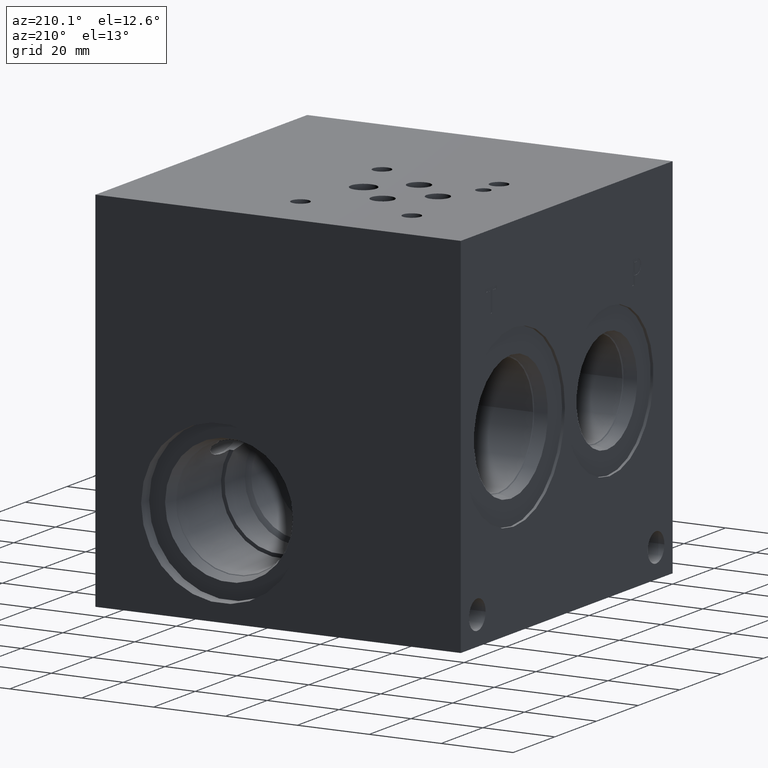
[diagram: clean part render]
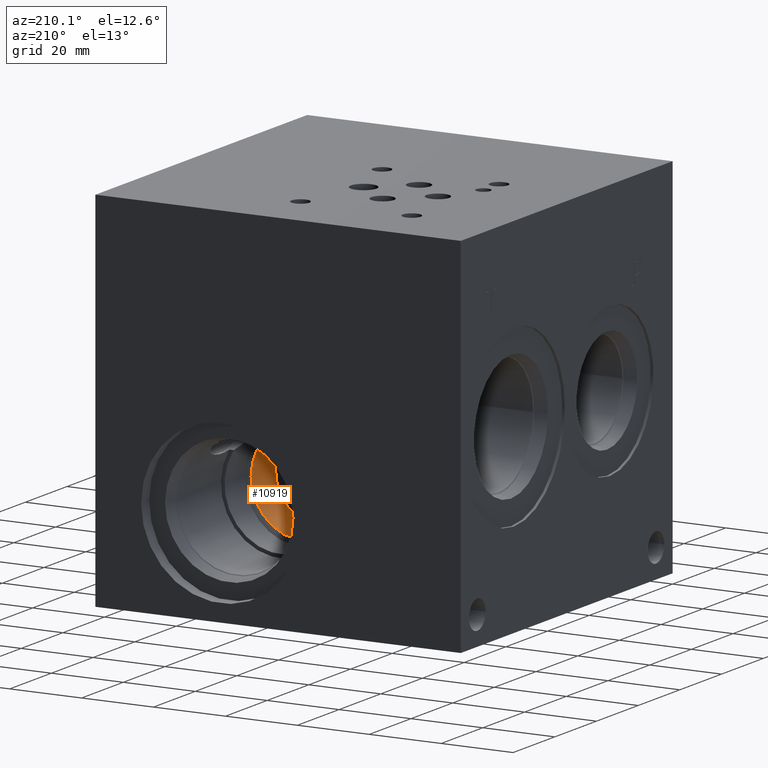
[diagram: same view with one face highlighted and labeled with its STEP entity id]
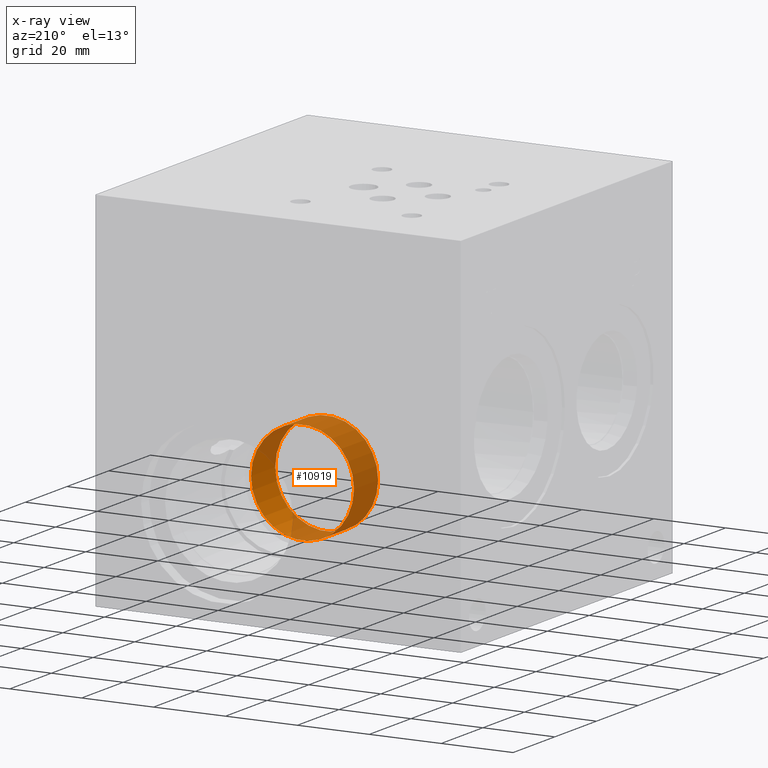
[diagram: x-ray of the same camera — body ghosted, the highlighted face saturated]
A machine part, auxiliary view. The second image highlights one B-rep face of the part: STEP entity #10919.
The next image is the same camera in x-ray: the body ghosted, the highlighted face saturated — about 68% of this face is hidden behind the body in this view.
In plain terms, the highlighted cylindrical surface (bore or boss wall) has radius 14.31 mm, axis along (0, -1, 0).
Its self-contained STEP definition (entity closure, byte-faithful):
#61=CYLINDRICAL_SURFACE('',#11395,14.31);
#152=CIRCLE('',#11393,14.31);
#153=CIRCLE('',#11394,14.31);
#154=CIRCLE('',#11396,14.31);
#155=CIRCLE('',#11397,14.31);
#1290=FACE_OUTER_BOUND('',#1903,.T.);
#1903=EDGE_LOOP('',(#9119,#9120,#9121,#9122,#9123,#9124));
#2978=LINE('',#18451,#3997);
#3997=VECTOR('',#13312,14.31);
#4937=VERTEX_POINT('',#18444);
#4938=VERTEX_POINT('',#18446);
#4939=VERTEX_POINT('',#18450);
#4940=VERTEX_POINT('',#18452);
#6392=EDGE_CURVE('',#4937,#4938,#152,.T.);
#6393=EDGE_CURVE('',#4938,#4937,#153,.T.);
#6394=EDGE_CURVE('',#4937,#4939,#2978,.T.);
#6395=EDGE_CURVE('',#4939,#4940,#154,.T.);
#6396=EDGE_CURVE('',#4940,#4939,#155,.T.);
#9119=ORIENTED_EDGE('',*,*,#6393,.F.);
#9120=ORIENTED_EDGE('',*,*,#6392,.F.);
#9121=ORIENTED_EDGE('',*,*,#6394,.T.);
#9122=ORIENTED_EDGE('',*,*,#6395,.T.);
#9123=ORIENTED_EDGE('',*,*,#6396,.T.);
#9124=ORIENTED_EDGE('',*,*,#6394,.F.);
#10919=ADVANCED_FACE('',(#1290),#61,.F.);
#11393=AXIS2_PLACEMENT_3D('',#18447,#13306,#13307);
#11394=AXIS2_PLACEMENT_3D('',#18448,#13308,#13309);
#11395=AXIS2_PLACEMENT_3D('',#18449,#13310,#13311);
#11396=AXIS2_PLACEMENT_3D('',#18453,#13313,#13314);
#11397=AXIS2_PLACEMENT_3D('',#18454,#13315,#13316);
#13306=DIRECTION('center_axis',(0.,-1.,0.));
#13307=DIRECTION('ref_axis',(1.,0.,0.));
#13308=DIRECTION('center_axis',(0.,-1.,0.));
#13309=DIRECTION('ref_axis',(1.,0.,0.));
#13310=DIRECTION('center_axis',(0.,-1.,0.));
#13311=DIRECTION('ref_axis',(1.,0.,0.));
#13312=DIRECTION('',(0.,-1.,0.));
#13313=DIRECTION('center_axis',(0.,-1.,0.));
#13314=DIRECTION('ref_axis',(1.,0.,0.));
#13315=DIRECTION('center_axis',(0.,-1.,0.));
#13316=DIRECTION('ref_axis',(1.,0.,0.));
#18444=CARTESIAN_POINT('',(52.365,62.4913625,26.9748));
#18446=CARTESIAN_POINT('',(80.985,62.4913625,26.9748));
#18447=CARTESIAN_POINT('Origin',(66.675,62.4913625,26.9748));
#18448=CARTESIAN_POINT('Origin',(66.675,62.4913625,26.9748));
#18449=CARTESIAN_POINT('Origin',(66.675,56.70798125,26.9748));
#18450=CARTESIAN_POINT('',(52.365,50.9246,26.9748));
#18451=CARTESIAN_POINT('',(52.365,56.70798125,26.9748));
#18452=CARTESIAN_POINT('',(80.985,50.9246,26.9748));
#18453=CARTESIAN_POINT('Origin',(66.675,50.9246,26.9748));
#18454=CARTESIAN_POINT('Origin',(66.675,50.9246,26.9748));